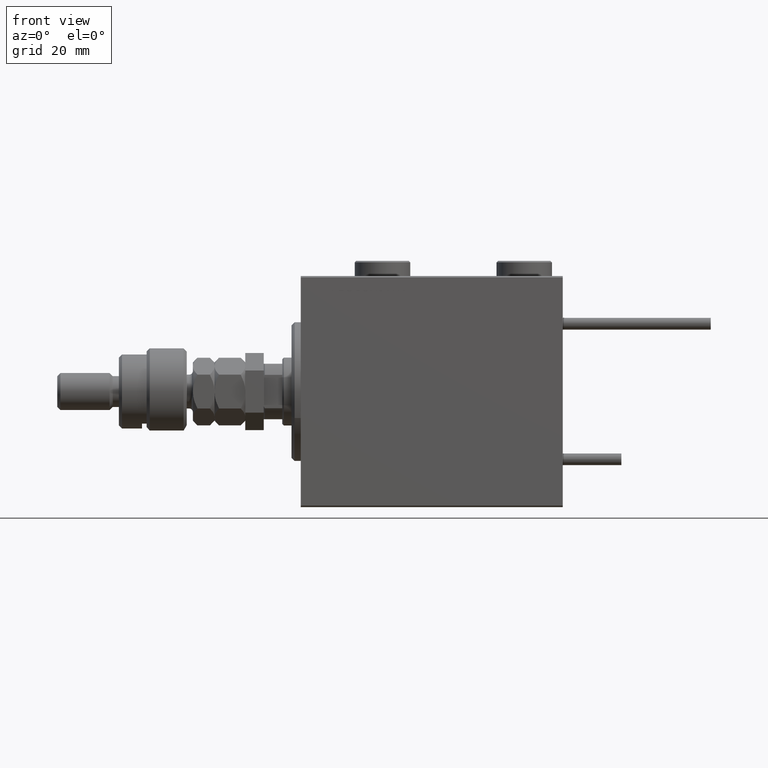
[diagram: clean part render]
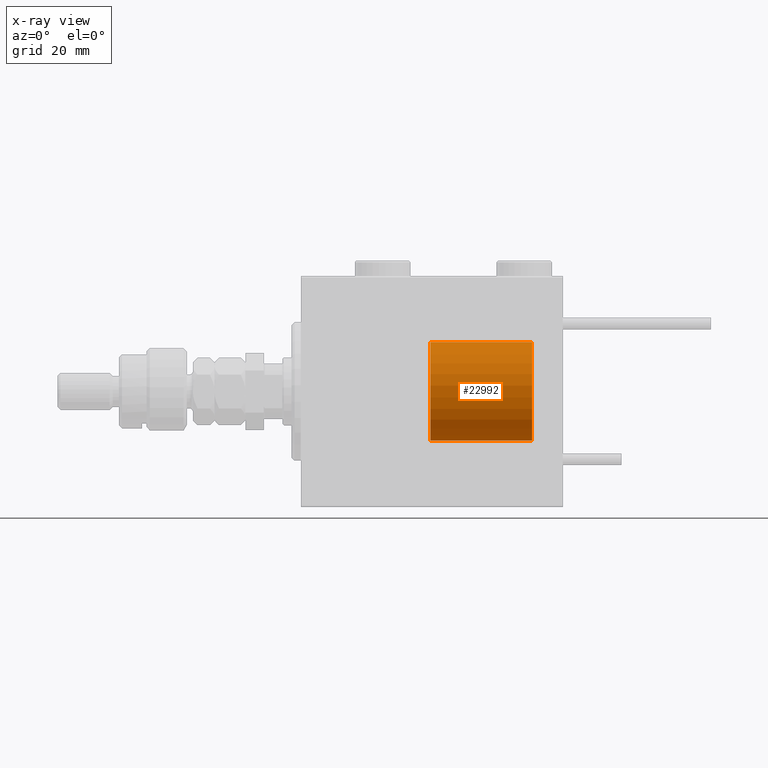
[diagram: x-ray — body ghosted, one internal face saturated and labeled with its STEP entity id]
A machine part, front view, then the same camera in x-ray: the body is ghosted and one INTERNAL B-rep face — a face not visible from any outside direction — is saturated and labeled: STEP entity #22992.
In plain terms, the highlighted cylindrical surface (partial cylindrical patch) has radius 16 mm, axis along (1, -0, -0).
Its self-contained STEP definition (entity closure, byte-faithful):
#4721 = EDGE_CURVE ( 'NONE', #38944, #34172, #26152, .T. ) ;
#5133 = CYLINDRICAL_SURFACE ( 'NONE', #17489, 16.00000000000000000 ) ;
#8127 = AXIS2_PLACEMENT_3D ( 'NONE', #28481, #44767, #28212 ) ;
#9229 = VERTEX_POINT ( 'NONE', #37686 ) ;
#9507 = AXIS2_PLACEMENT_3D ( 'NONE', #11312, #53360, #15697 ) ;
#10586 = ORIENTED_EDGE ( 'NONE', *, *, #20269, .T. ) ;
#11312 = CARTESIAN_POINT ( 'NONE',  ( 0.000000000000000000, 0.000000000000000000, 33.00000000000000000 ) ) ;
#13285 = ORIENTED_EDGE ( 'NONE', *, *, #4721, .F. ) ;
#13368 = CIRCLE ( 'NONE', #8127, 16.00000000000000000 ) ;
#14454 = DIRECTION ( 'NONE',  ( -1.000000000000000000, 0.000000000000000000, 0.000000000000000000 ) ) ;
#15697 = DIRECTION ( 'NONE',  ( 1.000000000000000000, 0.000000000000000000, 0.000000000000000000 ) ) ;
#17474 = CARTESIAN_POINT ( 'NONE',  ( -16.00000000000000000, 0.000000000000000000, 33.00000000000000000 ) ) ;
#17489 = AXIS2_PLACEMENT_3D ( 'NONE', #52125, #42788, #14454 ) ;
#18169 = CARTESIAN_POINT ( 'NONE',  ( -16.00000000000000000, 0.000000000000000000, 33.00000000000000000 ) ) ;
#20269 = EDGE_CURVE ( 'NONE', #38944, #39502, #38097, .T. ) ;
#22992 = ADVANCED_FACE ( 'NONE', ( #51057 ), #5133, .T. ) ;
#26084 = CARTESIAN_POINT ( 'NONE',  ( 16.00000000000000000, 1.959434878635765131E-15, 33.00000000000000000 ) ) ;
#26152 = CIRCLE ( 'NONE', #9507, 16.00000000000000000 ) ;
#28212 = DIRECTION ( 'NONE',  ( 1.000000000000000000, 0.000000000000000000, 0.000000000000000000 ) ) ;
#28481 = CARTESIAN_POINT ( 'NONE',  ( 0.000000000000000000, 0.000000000000000000, 0.000000000000000000 ) ) ;
#28838 = ORIENTED_EDGE ( 'NONE', *, *, #48937, .F. ) ;
#29279 = ORIENTED_EDGE ( 'NONE', *, *, #38507, .T. ) ;
#30628 = DIRECTION ( 'NONE',  ( -0.000000000000000000, -0.000000000000000000, -1.000000000000000000 ) ) ;
#31811 = VECTOR ( 'NONE', #30628, 1000.000000000000000 ) ;
#32322 = VECTOR ( 'NONE', #51263, 1000.000000000000000 ) ;
#34172 = VERTEX_POINT ( 'NONE', #26084 ) ;
#34719 = LINE ( 'NONE', #51517, #32322 ) ;
#37686 = CARTESIAN_POINT ( 'NONE',  ( 16.00000000000000000, 1.959434878635765131E-15, 0.000000000000000000 ) ) ;
#38097 = LINE ( 'NONE', #17474, #31811 ) ;
#38507 = EDGE_CURVE ( 'NONE', #39502, #9229, #13368, .T. ) ;
#38944 = VERTEX_POINT ( 'NONE', #18169 ) ;
#39502 = VERTEX_POINT ( 'NONE', #49922 ) ;
#42788 = DIRECTION ( 'NONE',  ( -0.000000000000000000, -0.000000000000000000, -1.000000000000000000 ) ) ;
#44767 = DIRECTION ( 'NONE',  ( 0.000000000000000000, 0.000000000000000000, 1.000000000000000000 ) ) ;
#48937 = EDGE_CURVE ( 'NONE', #34172, #9229, #34719, .T. ) ;
#49922 = CARTESIAN_POINT ( 'NONE',  ( -16.00000000000000000, 0.000000000000000000, 0.000000000000000000 ) ) ;
#51014 = EDGE_LOOP ( 'NONE', ( #28838, #13285, #10586, #29279 ) ) ;
#51057 = FACE_OUTER_BOUND ( 'NONE', #51014, .T. ) ;
#51263 = DIRECTION ( 'NONE',  ( -0.000000000000000000, -0.000000000000000000, -1.000000000000000000 ) ) ;
#51517 = CARTESIAN_POINT ( 'NONE',  ( 16.00000000000000000, 1.959434878635765131E-15, 33.00000000000000000 ) ) ;
#52125 = CARTESIAN_POINT ( 'NONE',  ( 0.000000000000000000, 0.000000000000000000, 33.00000000000000000 ) ) ;
#53360 = DIRECTION ( 'NONE',  ( 0.000000000000000000, 0.000000000000000000, 1.000000000000000000 ) ) ;